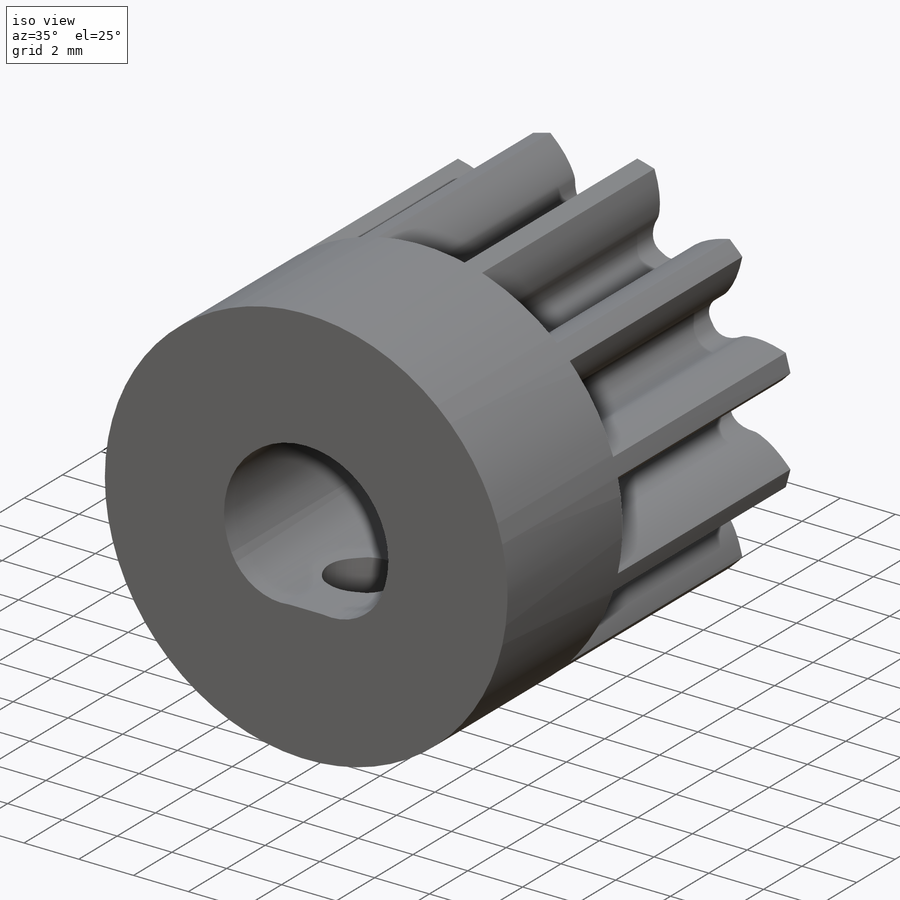
[diagram: iso view]
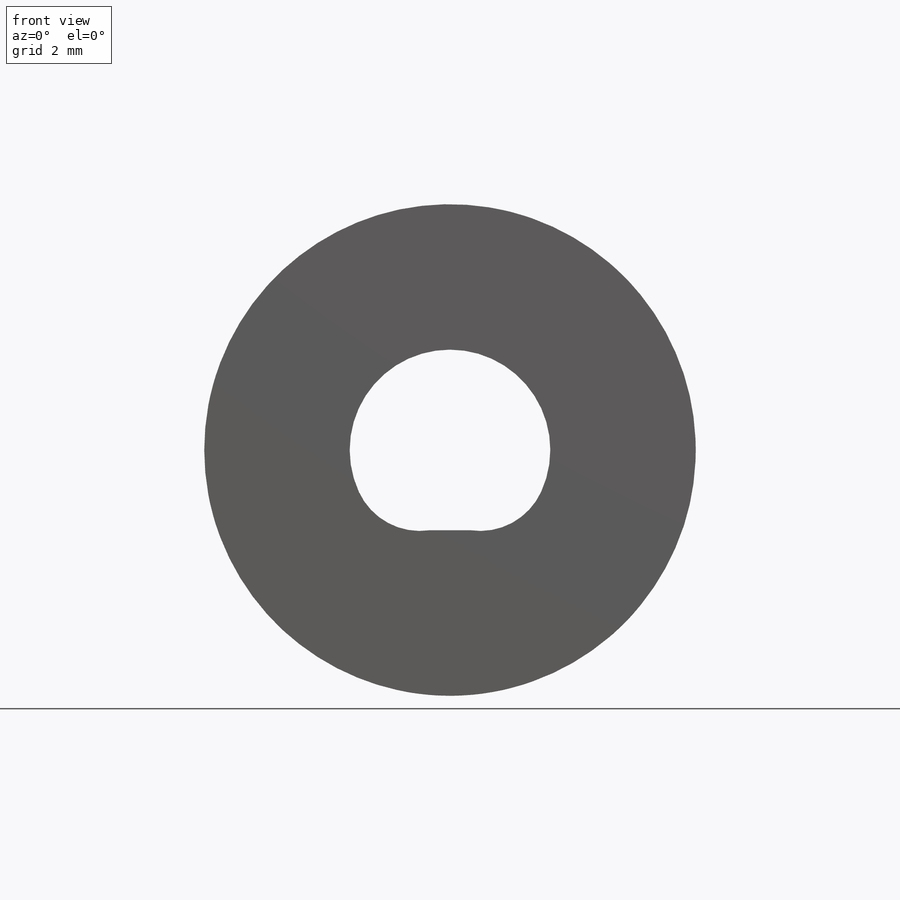
[diagram: front view]
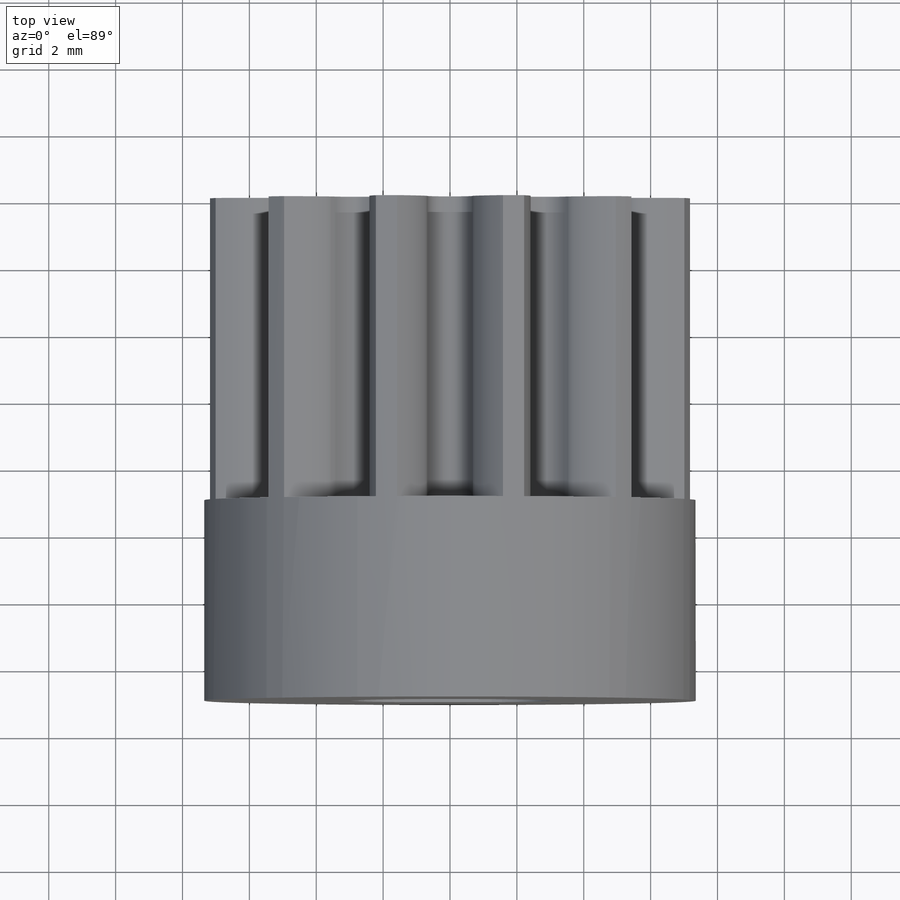
[diagram: top view]
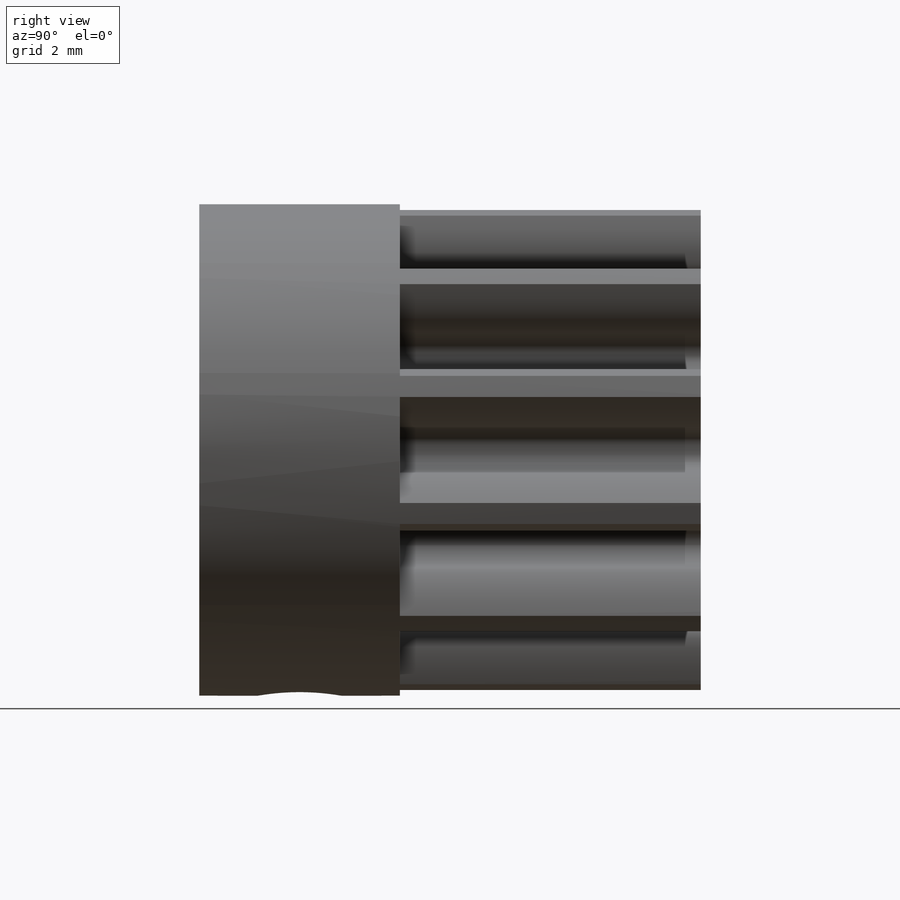
[diagram: right view]
SOLIDWORKS PART (.sldprt)
format: sldprt  version: not decoded by parser v0  size: 710,656 bytes
history: native  units: mm
features: sketch x8, cut_extrude x3, extrude x3, plane x3, material x1, revolve x1, pattern_circular x1, cut_revolve x1, move_body x1, boolean_combine x1 + 2 further entries (+17 scaffold rows collapsed; 5 parser-record rows omitted)
feature tree (47):
  scaffold x17  (default folders/planes/origin — collapsed)
  material  "Material <not specified>"
  sketch  "SketchRevolveN12_hip"  dims[Side1=3.0mm OutsideRadius=8.0mm Side2=3.0mm]
  revolve  "N12_hip"  Angle=360deg
  sketch  "SketchToothN12_hip"
  cut_extrude  "ToothExtrudeCutN12_hip"  Depth=3mm
  pattern_circular  "PatternN12_hip"  Count=12 Angle=30deg
  sketch  "BoreRevolveSketch"  dims[BoreSide1=3.0mm TaperSide1=3.0mm BoreSide2=3.0mm TaperSide2=3.0mm]
  cut_revolve  "BoreRevolveCut"  Angle=360deg
  sketch  "Sketch5"  dims[D1=14.7mm]
  extrude  "Boss-Extrude1"  Depth=6mm
  sketch  "Sketch8"
  cut_extrude  "Cut-Extrude3"  [1 undecoded]
  plane  "Front-N12_M1.05"
  plane  "Top-N12_M1.05"
  plane  "Right-N12_M1.05"
  "Axis1-N12_M1.05"
  "N12_M1.05"
  parser-record x5  (decoder bookkeeping rows leaked as tree rows — omitted from the tree; the rows remain in map.json)
  move_body  "Body-Move/Copy2"
  boolean_combine  "Combine1"
  sketch  "Sketch7"  dims[c1.D2=2.02mm c1.D3=4.02mm c1.D1=2.4mm c2.D3=~1.424079mm c2.D2=0.6mm c2.D1=0.6mm c3.D2=2.4mm c3.D4=0.6mm]
  extrude  "Boss-Extrude2"  [1 undecoded]
  sketch  "Sketch6"  dims[D2=2.5mm D1=3.0mm]
  cut_extrude  "Cut-Extrude2"  [1 undecoded]
  sketch  "Esquisse3"
  extrude  "Boss.-Extru.1"  Depth=3mm
decode coverage: 11 of 19 modeling features carry decoded parameters; 2 rows unclassified (native names shown)
note: ~ marks probable driven/reference dimensions
note: 3 parameter values undecoded
summary: no parameter record found for 3 features
note: suppression state not decoded; provenance and decode notes live in map.json
